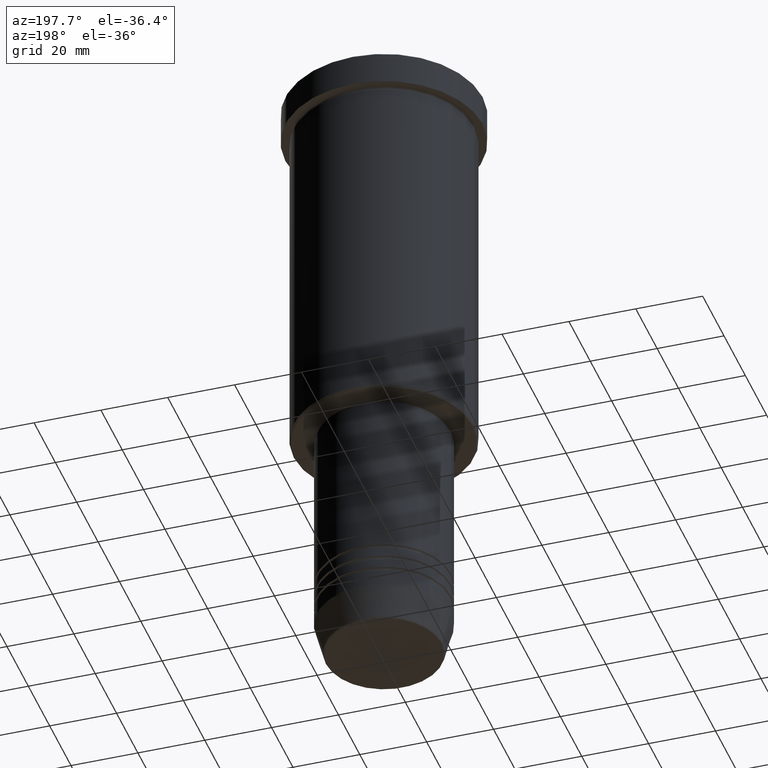
[diagram: clean part render]
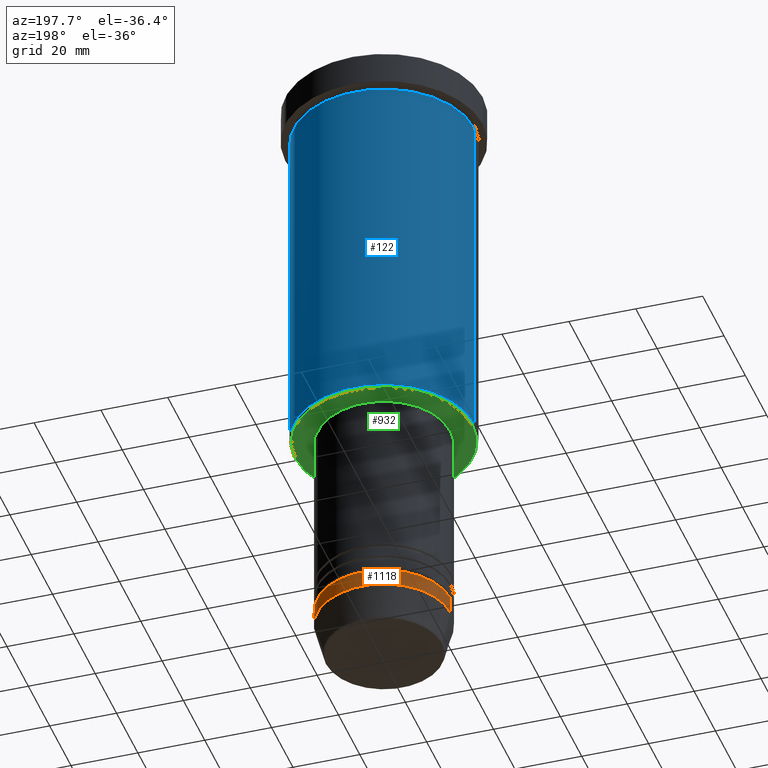
[diagram: same view with three faces highlighted in distinct colors, each labeled with its STEP entity id]
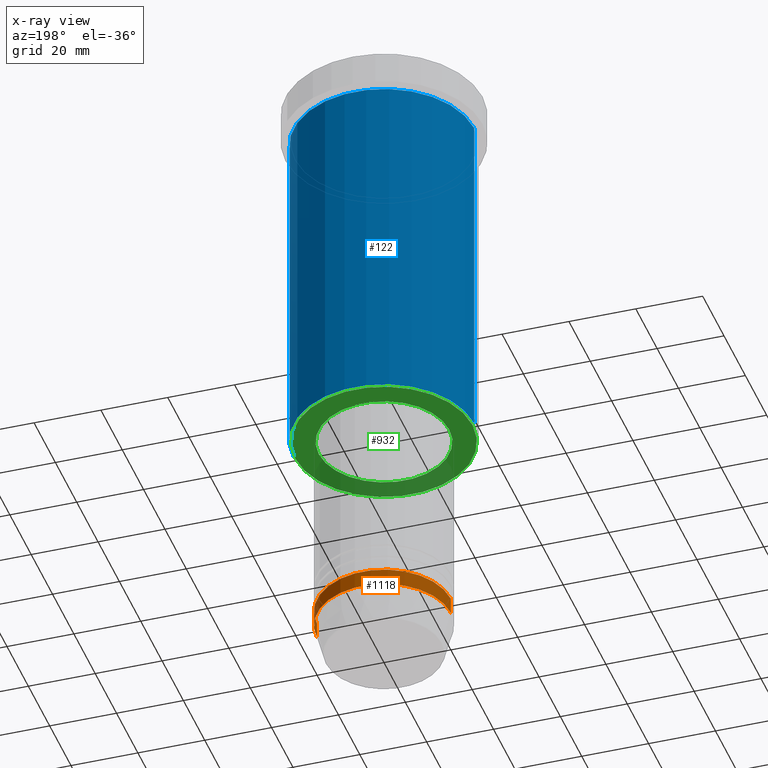
[diagram: x-ray of the same camera — body ghosted, the three highlighted faces saturated]
A machine part, auxiliary view with three faces highlighted in distinct colors.
The next image is the same camera in x-ray (body ghosted, the three faces saturated) — at least one of them is partly hidden behind the body in this view.
Their STEP definitions:

[orange] entity #1118 — the highlighted cylindrical surface (partial cylindrical patch) has radius 20 mm, axis along (-0, -0, 1).
#35 = DIRECTION ( 'NONE',  ( 1.000000000000000000, 0.000000000000000000, 0.000000000000000000 ) ) ;
#48 = VERTEX_POINT ( 'NONE', #248 ) ;
#75 = CYLINDRICAL_SURFACE ( 'NONE', #552, 20.00000000000000000 ) ;
#148 = EDGE_CURVE ( 'NONE', #504, #48, #631, .T. ) ;
#150 = CARTESIAN_POINT ( 'NONE',  ( 0.000000000000000000, 0.000000000000000000, -181.0000000000000000 ) ) ;
#171 = DIRECTION ( 'NONE',  ( -0.000000000000000000, -0.000000000000000000, 1.000000000000000000 ) ) ;
#197 = DIRECTION ( 'NONE',  ( -0.000000000000000000, -0.000000000000000000, 1.000000000000000000 ) ) ;
#240 = DIRECTION ( 'NONE',  ( 1.000000000000000000, 0.000000000000000000, 0.000000000000000000 ) ) ;
#245 = CARTESIAN_POINT ( 'NONE',  ( 20.00000000000000000, 0.000000000000000000, -181.0000000000000000 ) ) ;
#248 = CARTESIAN_POINT ( 'NONE',  ( 20.00000000000000000, 0.000000000000000000, -176.0000000000000284 ) ) ;
#256 = CARTESIAN_POINT ( 'NONE',  ( 20.00000000000000000, 0.000000000000000000, 0.000000000000000000 ) ) ;
#263 = EDGE_CURVE ( 'NONE', #48, #865, #947, .T. ) ;
#312 = VECTOR ( 'NONE', #393, 1000.000000000000000 ) ;
#317 = EDGE_CURVE ( 'NONE', #504, #1021, #679, .T. ) ;
#336 = EDGE_LOOP ( 'NONE', ( #495, #1180, #364, #1108 ) ) ;
#364 = ORIENTED_EDGE ( 'NONE', *, *, #263, .F. ) ;
#393 = DIRECTION ( 'NONE',  ( -0.000000000000000000, -0.000000000000000000, 1.000000000000000000 ) ) ;
#396 = AXIS2_PLACEMENT_3D ( 'NONE', #1128, #197, #35 ) ;
#411 = AXIS2_PLACEMENT_3D ( 'NONE', #150, #872, #240 ) ;
#487 = CARTESIAN_POINT ( 'NONE',  ( -20.00000000000000000, 2.449293598294706513E-15, 0.000000000000000000 ) ) ;
#495 = ORIENTED_EDGE ( 'NONE', *, *, #317, .T. ) ;
#504 = VERTEX_POINT ( 'NONE', #245 ) ;
#552 = AXIS2_PLACEMENT_3D ( 'NONE', #1176, #171, #719 ) ;
#586 = CARTESIAN_POINT ( 'NONE',  ( -20.00000000000000000, 2.449293598294706513E-15, -176.0000000000000284 ) ) ;
#616 = DIRECTION ( 'NONE',  ( -0.000000000000000000, -0.000000000000000000, 1.000000000000000000 ) ) ;
#631 = LINE ( 'NONE', #256, #790 ) ;
#635 = FACE_OUTER_BOUND ( 'NONE', #336, .T. ) ;
#679 = CIRCLE ( 'NONE', #411, 20.00000000000000000 ) ;
#719 = DIRECTION ( 'NONE',  ( 1.000000000000000000, 0.000000000000000000, 0.000000000000000000 ) ) ;
#760 = CARTESIAN_POINT ( 'NONE',  ( -20.00000000000000000, 2.449293598294706513E-15, -181.0000000000000000 ) ) ;
#790 = VECTOR ( 'NONE', #616, 1000.000000000000000 ) ;
#801 = LINE ( 'NONE', #487, #312 ) ;
#865 = VERTEX_POINT ( 'NONE', #586 ) ;
#872 = DIRECTION ( 'NONE',  ( -0.000000000000000000, -0.000000000000000000, 1.000000000000000000 ) ) ;
#947 = CIRCLE ( 'NONE', #396, 20.00000000000000000 ) ;
#983 = EDGE_CURVE ( 'NONE', #1021, #865, #801, .T. ) ;
#1021 = VERTEX_POINT ( 'NONE', #760 ) ;
#1108 = ORIENTED_EDGE ( 'NONE', *, *, #148, .F. ) ;
#1118 = ADVANCED_FACE ( 'NONE', ( #635 ), #75, .T. ) ;
#1128 = CARTESIAN_POINT ( 'NONE',  ( 0.000000000000000000, 0.000000000000000000, -176.0000000000000284 ) ) ;
#1176 = CARTESIAN_POINT ( 'NONE',  ( 0.000000000000000000, 0.000000000000000000, 0.000000000000000000 ) ) ;
#1180 = ORIENTED_EDGE ( 'NONE', *, *, #983, .T. ) ;

[blue] entity #122 — the highlighted cylindrical surface (partial cylindrical patch) has radius 27 mm, axis along (-0, -0, 1).
#4 = CYLINDRICAL_SURFACE ( 'NONE', #716, 27.00000000000000355 ) ;
#39 = CARTESIAN_POINT ( 'NONE',  ( 27.00000000000000355, 0.000000000000000000, -10.99999999999999289 ) ) ;
#57 = VERTEX_POINT ( 'NONE', #958 ) ;
#82 = AXIS2_PLACEMENT_3D ( 'NONE', #382, #1028, #279 ) ;
#122 = ADVANCED_FACE ( 'NONE', ( #899 ), #4, .T. ) ;
#164 = DIRECTION ( 'NONE',  ( 1.000000000000000000, 0.000000000000000000, 0.000000000000000000 ) ) ;
#213 = ORIENTED_EDGE ( 'NONE', *, *, #1104, .T. ) ;
#254 = DIRECTION ( 'NONE',  ( -0.000000000000000000, -0.000000000000000000, 1.000000000000000000 ) ) ;
#279 = DIRECTION ( 'NONE',  ( -1.000000000000000000, 0.000000000000000000, 0.000000000000000000 ) ) ;
#308 = CARTESIAN_POINT ( 'NONE',  ( -27.00000000000000355, 3.306546357697854128E-15, -10.99999999999999289 ) ) ;
#382 = CARTESIAN_POINT ( 'NONE',  ( 0.000000000000000000, 0.000000000000000000, -115.4999999999999716 ) ) ;
#428 = DIRECTION ( 'NONE',  ( -0.000000000000000000, -0.000000000000000000, 1.000000000000000000 ) ) ;
#437 = CARTESIAN_POINT ( 'NONE',  ( 0.000000000000000000, 0.000000000000000000, 0.000000000000000000 ) ) ;
#463 = VECTOR ( 'NONE', #254, 1000.000000000000000 ) ;
#471 = EDGE_LOOP ( 'NONE', ( #705, #213, #565, #689 ) ) ;
#509 = VECTOR ( 'NONE', #428, 1000.000000000000000 ) ;
#528 = CARTESIAN_POINT ( 'NONE',  ( 0.000000000000000000, 0.000000000000000000, -10.99999999999999289 ) ) ;
#565 = ORIENTED_EDGE ( 'NONE', *, *, #1177, .F. ) ;
#623 = DIRECTION ( 'NONE',  ( -0.000000000000000000, -0.000000000000000000, 1.000000000000000000 ) ) ;
#625 = EDGE_CURVE ( 'NONE', #57, #662, #957, .T. ) ;
#662 = VERTEX_POINT ( 'NONE', #742 ) ;
#689 = ORIENTED_EDGE ( 'NONE', *, *, #1135, .F. ) ;
#705 = ORIENTED_EDGE ( 'NONE', *, *, #625, .T. ) ;
#716 = AXIS2_PLACEMENT_3D ( 'NONE', #437, #623, #1181 ) ;
#742 = CARTESIAN_POINT ( 'NONE',  ( -27.00000000000000355, 3.306546357697854128E-15, -115.4999999999999716 ) ) ;
#795 = LINE ( 'NONE', #808, #509 ) ;
#808 = CARTESIAN_POINT ( 'NONE',  ( -27.00000000000000355, 3.306546357697854128E-15, 0.000000000000000000 ) ) ;
#899 = FACE_OUTER_BOUND ( 'NONE', #471, .T. ) ;
#905 = CARTESIAN_POINT ( 'NONE',  ( 27.00000000000000355, 0.000000000000000000, 0.000000000000000000 ) ) ;
#923 = CIRCLE ( 'NONE', #1127, 27.00000000000000355 ) ;
#957 = CIRCLE ( 'NONE', #82, 27.00000000000000355 ) ;
#958 = CARTESIAN_POINT ( 'NONE',  ( 27.00000000000000355, 0.000000000000000000, -115.4999999999999716 ) ) ;
#982 = DIRECTION ( 'NONE',  ( -0.000000000000000000, -0.000000000000000000, 1.000000000000000000 ) ) ;
#1028 = DIRECTION ( 'NONE',  ( -0.000000000000000000, -0.000000000000000000, 1.000000000000000000 ) ) ;
#1034 = VERTEX_POINT ( 'NONE', #39 ) ;
#1038 = VERTEX_POINT ( 'NONE', #308 ) ;
#1084 = LINE ( 'NONE', #905, #463 ) ;
#1104 = EDGE_CURVE ( 'NONE', #662, #1038, #795, .T. ) ;
#1127 = AXIS2_PLACEMENT_3D ( 'NONE', #528, #982, #164 ) ;
#1135 = EDGE_CURVE ( 'NONE', #57, #1034, #1084, .T. ) ;
#1177 = EDGE_CURVE ( 'NONE', #1034, #1038, #923, .T. ) ;
#1181 = DIRECTION ( 'NONE',  ( 1.000000000000000000, 0.000000000000000000, 0.000000000000000000 ) ) ;

[green] entity #932 — the highlighted planar face has unit normal (0, 0, -1).
#34 = EDGE_CURVE ( 'NONE', #280, #1082, #111, .T. ) ;
#37 = CIRCLE ( 'NONE', #693, 26.49999999999992539 ) ;
#53 = VERTEX_POINT ( 'NONE', #143 ) ;
#76 = DIRECTION ( 'NONE',  ( 0.000000000000000000, 0.000000000000000000, -1.000000000000000000 ) ) ;
#94 = DIRECTION ( 'NONE',  ( -1.000000000000000000, 0.000000000000000000, -0.000000000000000000 ) ) ;
#98 = EDGE_CURVE ( 'NONE', #53, #1137, #37, .T. ) ;
#108 = EDGE_LOOP ( 'NONE', ( #154, #400 ) ) ;
#111 = CIRCLE ( 'NONE', #305, 19.50000000000000000 ) ;
#120 = ORIENTED_EDGE ( 'NONE', *, *, #34, .T. ) ;
#143 = CARTESIAN_POINT ( 'NONE',  ( -26.49999999999992539, 3.275930187719165608E-15, -116.0000000000000142 ) ) ;
#154 = ORIENTED_EDGE ( 'NONE', *, *, #496, .T. ) ;
#181 = DIRECTION ( 'NONE',  ( -1.000000000000000000, 0.000000000000000000, 0.000000000000000000 ) ) ;
#192 = PLANE ( 'NONE',  #824 ) ;
#210 = CARTESIAN_POINT ( 'NONE',  ( 19.50000000000000000, 0.000000000000000000, -116.0000000000000142 ) ) ;
#241 = DIRECTION ( 'NONE',  ( 1.000000000000000000, 0.000000000000000000, 0.000000000000000000 ) ) ;
#260 = DIRECTION ( 'NONE',  ( 0.000000000000000000, 0.000000000000000000, -1.000000000000000000 ) ) ;
#277 = CIRCLE ( 'NONE', #1142, 19.50000000000000000 ) ;
#280 = VERTEX_POINT ( 'NONE', #210 ) ;
#305 = AXIS2_PLACEMENT_3D ( 'NONE', #601, #880, #241 ) ;
#338 = DIRECTION ( 'NONE',  ( -1.000000000000000000, 0.000000000000000000, 0.000000000000000000 ) ) ;
#373 = EDGE_LOOP ( 'NONE', ( #120, #549 ) ) ;
#375 = FACE_OUTER_BOUND ( 'NONE', #108, .T. ) ;
#387 = DIRECTION ( 'NONE',  ( -0.000000000000000000, -0.000000000000000000, 1.000000000000000000 ) ) ;
#400 = ORIENTED_EDGE ( 'NONE', *, *, #98, .T. ) ;
#412 = CARTESIAN_POINT ( 'NONE',  ( 0.000000000000000000, 0.000000000000000000, -116.0000000000000142 ) ) ;
#450 = CARTESIAN_POINT ( 'NONE',  ( 26.49999999999992539, 0.000000000000000000, -116.0000000000000142 ) ) ;
#496 = EDGE_CURVE ( 'NONE', #1137, #53, #977, .T. ) ;
#549 = ORIENTED_EDGE ( 'NONE', *, *, #999, .T. ) ;
#601 = CARTESIAN_POINT ( 'NONE',  ( 0.000000000000000000, 0.000000000000000000, -116.0000000000000142 ) ) ;
#686 = AXIS2_PLACEMENT_3D ( 'NONE', #1168, #260, #181 ) ;
#693 = AXIS2_PLACEMENT_3D ( 'NONE', #412, #1164, #338 ) ;
#722 = FACE_BOUND ( 'NONE', #373, .T. ) ;
#824 = AXIS2_PLACEMENT_3D ( 'NONE', #906, #76, #94 ) ;
#880 = DIRECTION ( 'NONE',  ( -0.000000000000000000, -0.000000000000000000, 1.000000000000000000 ) ) ;
#906 = CARTESIAN_POINT ( 'NONE',  ( 0.000000000000000000, 27.00000000000000355, -116.0000000000000142 ) ) ;
#932 = ADVANCED_FACE ( 'NONE', ( #375, #722 ), #192, .T. ) ;
#977 = CIRCLE ( 'NONE', #686, 26.49999999999992539 ) ;
#999 = EDGE_CURVE ( 'NONE', #1082, #280, #277, .T. ) ;
#1050 = CARTESIAN_POINT ( 'NONE',  ( -19.50000000000000000, 2.388061258337338939E-15, -116.0000000000000142 ) ) ;
#1082 = VERTEX_POINT ( 'NONE', #1050 ) ;
#1121 = DIRECTION ( 'NONE',  ( 1.000000000000000000, 0.000000000000000000, 0.000000000000000000 ) ) ;
#1133 = CARTESIAN_POINT ( 'NONE',  ( 0.000000000000000000, 0.000000000000000000, -116.0000000000000142 ) ) ;
#1137 = VERTEX_POINT ( 'NONE', #450 ) ;
#1142 = AXIS2_PLACEMENT_3D ( 'NONE', #1133, #387, #1121 ) ;
#1164 = DIRECTION ( 'NONE',  ( 0.000000000000000000, 0.000000000000000000, -1.000000000000000000 ) ) ;
#1168 = CARTESIAN_POINT ( 'NONE',  ( 0.000000000000000000, 0.000000000000000000, -116.0000000000000142 ) ) ;